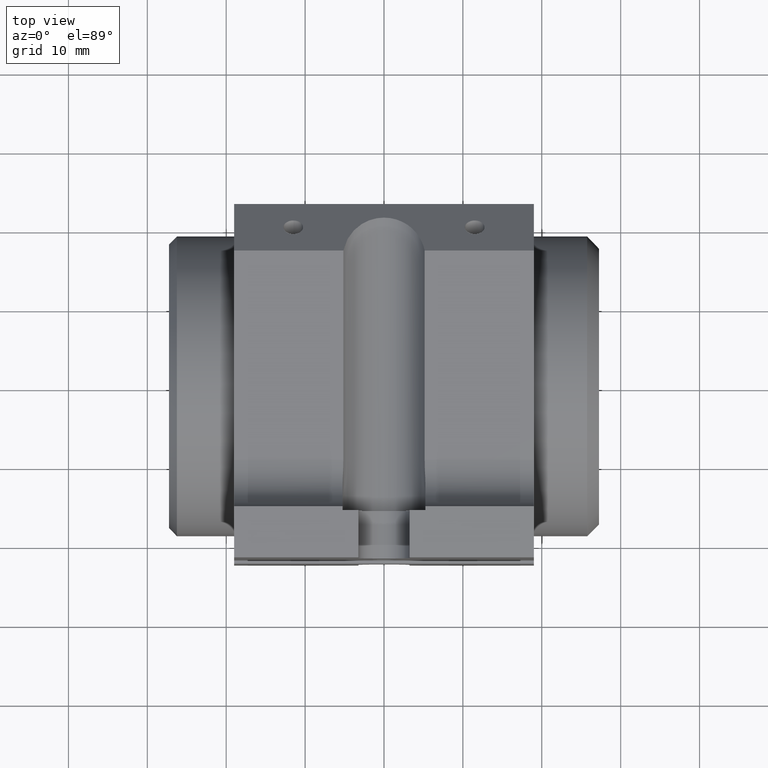
[diagram: clean part render]
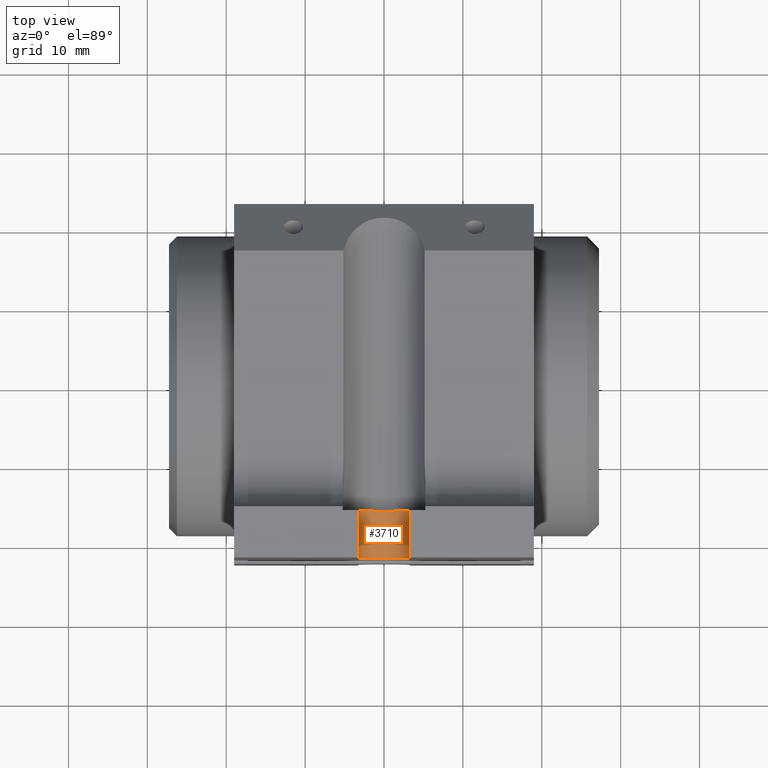
[diagram: same view with one face highlighted and labeled with its STEP entity id]
A machine part, top view. The second image highlights one B-rep face of the part: STEP entity #3710.
In plain terms, the highlighted cylindrical surface (edge-blend (fillet) strip) has radius 3.25 mm, axis along (0, 1, 0).
Its self-contained STEP definition (entity closure, byte-faithful):
#377 = CARTESIAN_POINT ( 'NONE',  ( -3.250000000000000444, -16.19999999999999929, 25.00000000000000000 ) ) ;
#426 = DIRECTION ( 'NONE',  ( 0.000000000000000000, 1.000000000000000000, 0.000000000000000000 ) ) ;
#481 = VERTEX_POINT ( 'NONE', #1338 ) ;
#745 = EDGE_CURVE ( 'NONE', #4533, #6529, #3747, .T. ) ;
#863 = AXIS2_PLACEMENT_3D ( 'NONE', #2793, #1763, #1357 ) ;
#887 = ORIENTED_EDGE ( 'NONE', *, *, #2760, .F. ) ;
#904 = DIRECTION ( 'NONE',  ( -0.000000000000000000, -1.000000000000000000, 0.000000000000000000 ) ) ;
#1338 = CARTESIAN_POINT ( 'NONE',  ( 3.250000000000000000, -22.19999999999999574, 25.00000000000000000 ) ) ;
#1357 = DIRECTION ( 'NONE',  ( 0.000000000000000000, 0.000000000000000000, 1.000000000000000000 ) ) ;
#1408 = DIRECTION ( 'NONE',  ( -0.000000000000000000, -1.000000000000000000, -0.000000000000000000 ) ) ;
#1438 = DIRECTION ( 'NONE',  ( 0.000000000000000000, 0.000000000000000000, 1.000000000000000000 ) ) ;
#1536 = VECTOR ( 'NONE', #1408, 1000.000000000000000 ) ;
#1617 = ORIENTED_EDGE ( 'NONE', *, *, #5589, .F. ) ;
#1763 = DIRECTION ( 'NONE',  ( -0.000000000000000000, -1.000000000000000000, -0.000000000000000000 ) ) ;
#1832 = CARTESIAN_POINT ( 'NONE',  ( 0.000000000000000000, -22.19999999999999574, 25.00000000000000000 ) ) ;
#1992 = CYLINDRICAL_SURFACE ( 'NONE', #3150, 3.249999999999999556 ) ;
#2244 = CARTESIAN_POINT ( 'NONE',  ( -3.250000000000000000, -22.19999999999999574, 25.00000000000000000 ) ) ;
#2414 = CARTESIAN_POINT ( 'NONE',  ( -3.250000000000000444, 22.80000000000000071, 25.00000000000000000 ) ) ;
#2488 = CARTESIAN_POINT ( 'NONE',  ( 3.250000000000000444, -16.19999999999999929, 25.00000000000000000 ) ) ;
#2760 = EDGE_CURVE ( 'NONE', #6529, #481, #6000, .T. ) ;
#2793 = CARTESIAN_POINT ( 'NONE',  ( 0.000000000000000000, -16.19999999999999929, 25.00000000000000000 ) ) ;
#2842 = VECTOR ( 'NONE', #904, 1000.000000000000000 ) ;
#2858 = CARTESIAN_POINT ( 'NONE',  ( 0.000000000000000000, 22.80000000000000071, 25.00000000000000000 ) ) ;
#2926 = DIRECTION ( 'NONE',  ( 0.000000000000000000, 0.000000000000000000, 1.000000000000000000 ) ) ;
#3095 = VERTEX_POINT ( 'NONE', #2244 ) ;
#3150 = AXIS2_PLACEMENT_3D ( 'NONE', #2858, #6494, #2926 ) ;
#3710 = ADVANCED_FACE ( 'NONE', ( #6557 ), #1992, .F. ) ;
#3747 = CIRCLE ( 'NONE', #863, 3.249999999999999556 ) ;
#4011 = LINE ( 'NONE', #2414, #2842 ) ;
#4192 = AXIS2_PLACEMENT_3D ( 'NONE', #1832, #426, #1438 ) ;
#4533 = VERTEX_POINT ( 'NONE', #377 ) ;
#4566 = ORIENTED_EDGE ( 'NONE', *, *, #745, .F. ) ;
#4694 = ORIENTED_EDGE ( 'NONE', *, *, #4889, .T. ) ;
#4836 = CIRCLE ( 'NONE', #4192, 3.249999999999999556 ) ;
#4889 = EDGE_CURVE ( 'NONE', #4533, #3095, #4011, .T. ) ;
#5092 = CARTESIAN_POINT ( 'NONE',  ( 3.250000000000000444, 22.80000000000000071, 25.00000000000000000 ) ) ;
#5208 = EDGE_LOOP ( 'NONE', ( #1617, #887, #4566, #4694 ) ) ;
#5589 = EDGE_CURVE ( 'NONE', #481, #3095, #4836, .T. ) ;
#6000 = LINE ( 'NONE', #5092, #1536 ) ;
#6494 = DIRECTION ( 'NONE',  ( 0.000000000000000000, 1.000000000000000000, 0.000000000000000000 ) ) ;
#6529 = VERTEX_POINT ( 'NONE', #2488 ) ;
#6557 = FACE_OUTER_BOUND ( 'NONE', #5208, .T. ) ;